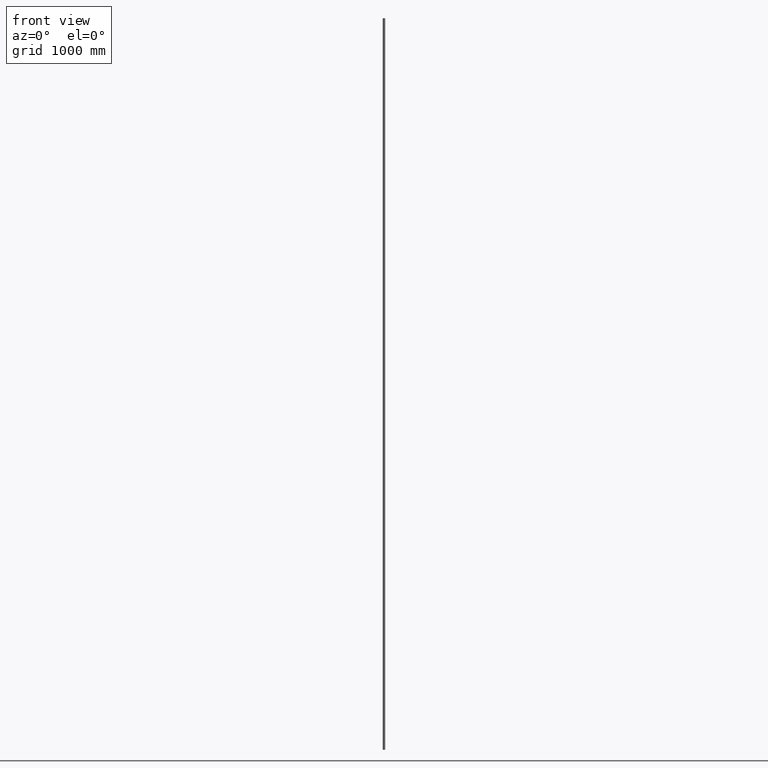
[diagram: clean part render]
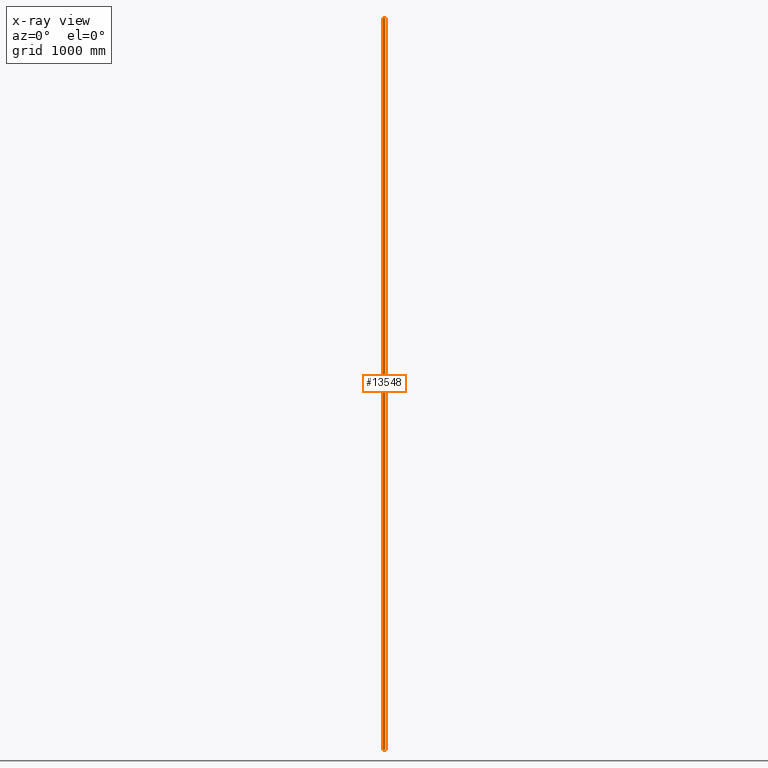
[diagram: x-ray — body ghosted, one internal face saturated and labeled with its STEP entity id]
A machine part, front view, then the same camera in x-ray: the body is ghosted and one INTERNAL B-rep face — a face not visible from any outside direction — is saturated and labeled: STEP entity #13548.
In plain terms, the highlighted cylindrical surface (bore or boss wall) has radius 10.65 mm, axis along (-0, -0, -1).
Its self-contained STEP definition (entity closure, byte-faithful):
#917 = CARTESIAN_POINT ( 'NONE',  ( 0.000000000000000000, 0.000000000000000000, -3000.000000000000000 ) ) ;
#1998 = DIRECTION ( 'NONE',  ( 1.000000000000000000, 0.000000000000000000, 0.000000000000000000 ) ) ;
#2018 = EDGE_CURVE ( 'NONE', #9783, #9783, #6562, .T. ) ;
#2801 = CARTESIAN_POINT ( 'NONE',  ( 10.65000000000000036, 0.000000000000000000, 3000.000000000000000 ) ) ;
#3536 = CYLINDRICAL_SURFACE ( 'NONE', #3579, 10.65000000000000036 ) ;
#3579 = AXIS2_PLACEMENT_3D ( 'NONE', #10553, #12665, #6368 ) ;
#4802 = EDGE_LOOP ( 'NONE', ( #6052 ) ) ;
#5827 = ORIENTED_EDGE ( 'NONE', *, *, #2018, .F. ) ;
#6052 = ORIENTED_EDGE ( 'NONE', *, *, #7732, .T. ) ;
#6344 = FACE_OUTER_BOUND ( 'NONE', #11829, .T. ) ;
#6368 = DIRECTION ( 'NONE',  ( -1.000000000000000000, 0.000000000000000000, 0.000000000000000000 ) ) ;
#6562 = CIRCLE ( 'NONE', #8048, 10.65000000000000036 ) ;
#7280 = AXIS2_PLACEMENT_3D ( 'NONE', #917, #9557, #1998 ) ;
#7672 = VERTEX_POINT ( 'NONE', #10176 ) ;
#7732 = EDGE_CURVE ( 'NONE', #7672, #7672, #8974, .T. ) ;
#8048 = AXIS2_PLACEMENT_3D ( 'NONE', #10433, #11427, #13556 ) ;
#8974 = CIRCLE ( 'NONE', #7280, 10.65000000000000036 ) ;
#8979 = FACE_OUTER_BOUND ( 'NONE', #4802, .T. ) ;
#9557 = DIRECTION ( 'NONE',  ( 0.000000000000000000, 0.000000000000000000, 1.000000000000000000 ) ) ;
#9783 = VERTEX_POINT ( 'NONE', #2801 ) ;
#10176 = CARTESIAN_POINT ( 'NONE',  ( 10.65000000000000036, 0.000000000000000000, -3000.000000000000000 ) ) ;
#10433 = CARTESIAN_POINT ( 'NONE',  ( 0.000000000000000000, 0.000000000000000000, 3000.000000000000000 ) ) ;
#10553 = CARTESIAN_POINT ( 'NONE',  ( 0.000000000000000000, 0.000000000000000000, 3000.000000000000000 ) ) ;
#11427 = DIRECTION ( 'NONE',  ( 0.000000000000000000, 0.000000000000000000, 1.000000000000000000 ) ) ;
#11829 = EDGE_LOOP ( 'NONE', ( #5827 ) ) ;
#12665 = DIRECTION ( 'NONE',  ( -0.000000000000000000, -0.000000000000000000, -1.000000000000000000 ) ) ;
#13548 = ADVANCED_FACE ( 'NONE', ( #6344, #8979 ), #3536, .T. ) ;
#13556 = DIRECTION ( 'NONE',  ( 1.000000000000000000, 0.000000000000000000, 0.000000000000000000 ) ) ;